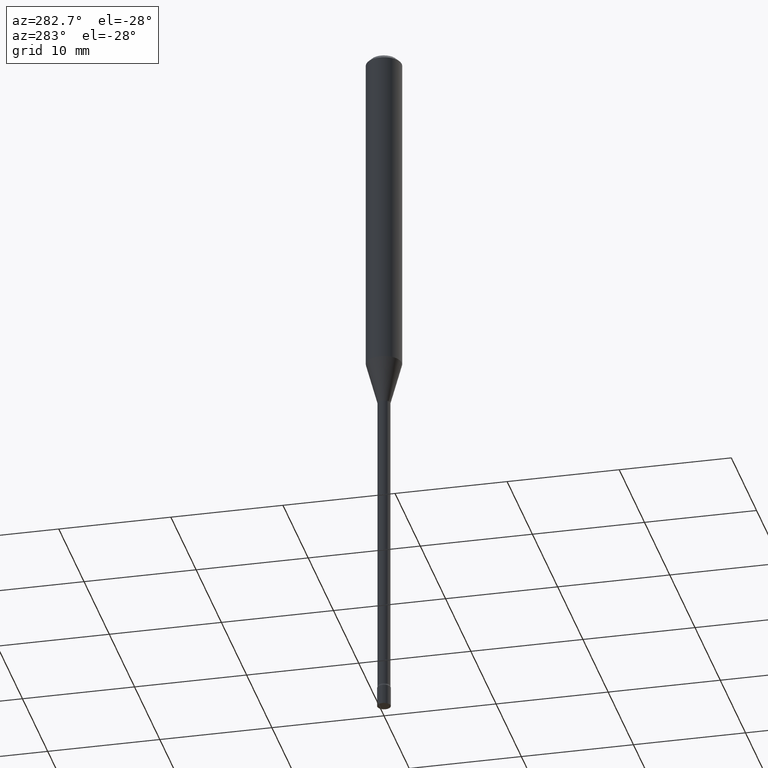
[diagram: clean part render]
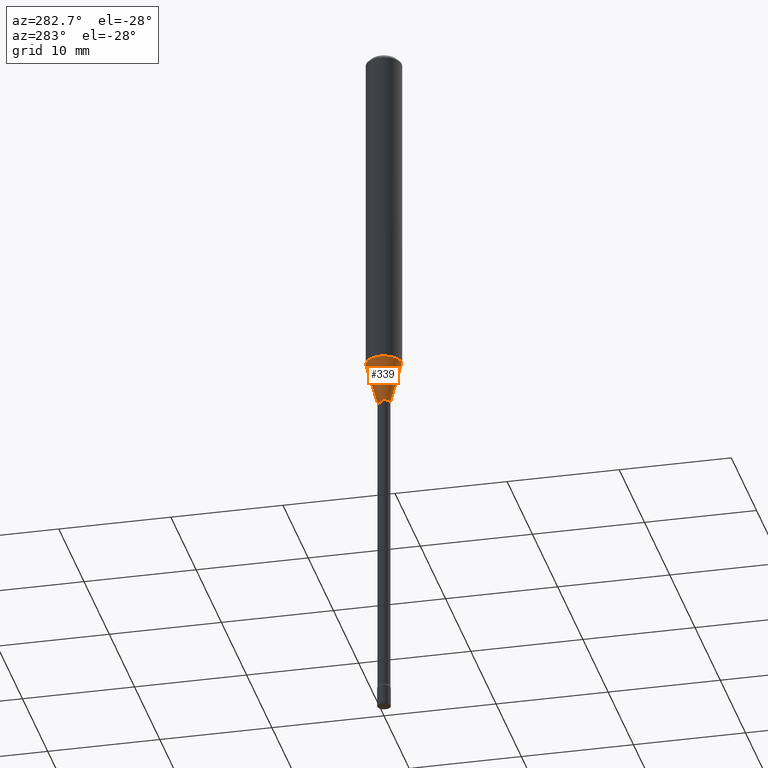
[diagram: same view with one face highlighted and labeled with its STEP entity id]
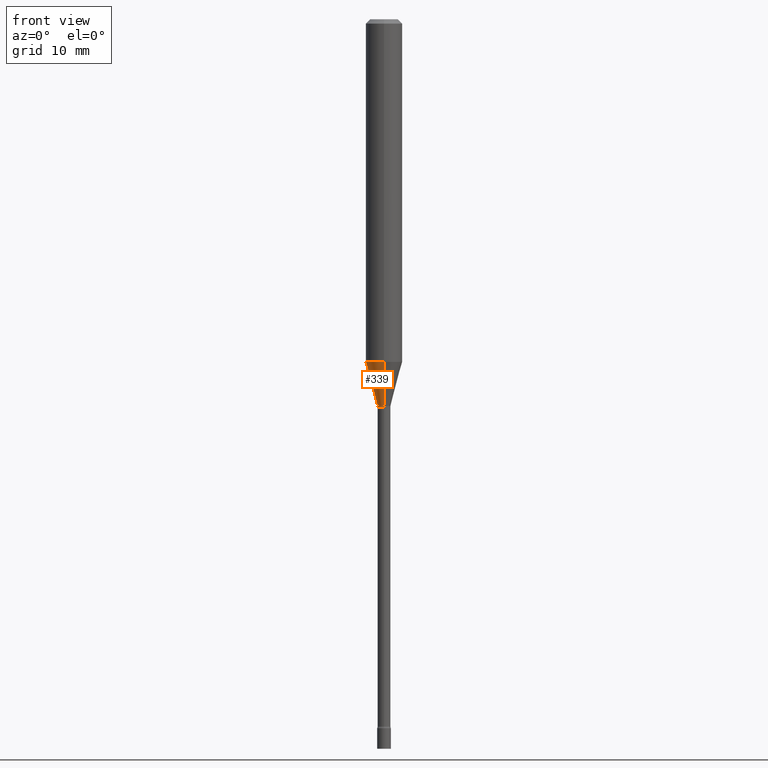
[diagram: same view with one face highlighted and labeled with its STEP entity id]
A machine part, auxiliary view. The second image highlights one B-rep face of the part: STEP entity #339.
A second angle (front view) of the same face is appended — the face is thin or edge-on in the first view.
In plain terms, the highlighted conical surface has half-angle 15 deg.
Its self-contained STEP definition (entity closure, byte-faithful):
#20 = DIRECTION ( 'NONE',  ( 1.839019923739597554E-15, 0.2588190451025245697, 0.9659258262890670910 ) ) ;
#21 = EDGE_CURVE ( 'NONE', #337, #266, #84, .T. ) ;
#28 = AXIS2_PLACEMENT_3D ( 'NONE', #386, #432, #388 ) ;
#64 = CARTESIAN_POINT ( 'NONE',  ( 1.606616180941141096E-16, 0.02261111260565936906, -1.323092501787273223 ) ) ;
#82 = CARTESIAN_POINT ( 'NONE',  ( 2.871546515168501925E-29, -4.099762927148765252E-15, -1.174225147374217793 ) ) ;
#84 = CIRCLE ( 'NONE', #209, 0.06250000000000000000 ) ;
#99 = ORIENTED_EDGE ( 'NONE', *, *, #21, .F. ) ;
#111 = ORIENTED_EDGE ( 'NONE', *, *, #138, .F. ) ;
#134 = CARTESIAN_POINT ( 'NONE',  ( 3.023754139721028336E-16, 0.02261111260565936906, -1.323092501787273223 ) ) ;
#138 = EDGE_CURVE ( 'NONE', #493, #337, #257, .T. ) ;
#173 = EDGE_LOOP ( 'NONE', ( #111, #218, #442, #99 ) ) ;
#189 = CARTESIAN_POINT ( 'NONE',  ( -1.578925554262807327E-16, -0.02261111260566860820, -1.323092501787273223 ) ) ;
#194 = CONICAL_SURFACE ( 'NONE', #382, 0.02261111260566398690, 0.2617993877991499074 ) ;
#196 = DIRECTION ( 'NONE',  ( -2.445482045406543342E-29, 3.491462379524561524E-15, 1.000000000000000000 ) ) ;
#197 = EDGE_CURVE ( 'NONE', #385, #266, #413, .T. ) ;
#198 = CARTESIAN_POINT ( 'NONE',  ( 3.235598957532801493E-29, -4.619527694621298613E-15, -1.323092501787273223 ) ) ;
#202 = DIRECTION ( 'NONE',  ( -6.982962677686265922E-15, -1.000000000000000000, 4.370956789862821150E-15 ) ) ;
#209 = AXIS2_PLACEMENT_3D ( 'NONE', #82, #242, #202 ) ;
#215 = VECTOR ( 'NONE', #20, 39.37007874015748854 ) ;
#218 = ORIENTED_EDGE ( 'NONE', *, *, #401, .T. ) ;
#238 = FACE_OUTER_BOUND ( 'NONE', #173, .T. ) ;
#242 = DIRECTION ( 'NONE',  ( -2.445482045406543342E-29, 3.491462379524561524E-15, 1.000000000000000000 ) ) ;
#257 = LINE ( 'NONE', #64, #215 ) ;
#262 = CIRCLE ( 'NONE', #28, 0.02261111260566398690 ) ;
#266 = VERTEX_POINT ( 'NONE', #293 ) ;
#293 = CARTESIAN_POINT ( 'NONE',  ( -4.364351673553631225E-16, -0.06250000000000412170, -1.174225147374217570 ) ) ;
#297 = DIRECTION ( 'NONE',  ( -1.807323732225327773E-15, -0.2588190451025178529, 0.9659258262890690894 ) ) ;
#322 = CARTESIAN_POINT ( 'NONE',  ( -1.578925554262807327E-16, -0.02261111260566860820, -1.323092501787273223 ) ) ;
#326 = VECTOR ( 'NONE', #297, 39.37007874015748143 ) ;
#337 = VERTEX_POINT ( 'NONE', #509 ) ;
#339 = ADVANCED_FACE ( 'NONE', ( #238 ), #194, .T. ) ;
#352 = DIRECTION ( 'NONE',  ( -6.982962677686265922E-15, -1.000000000000000000, 0.000000000000000000 ) ) ;
#382 = AXIS2_PLACEMENT_3D ( 'NONE', #198, #196, #352 ) ;
#385 = VERTEX_POINT ( 'NONE', #189 ) ;
#386 = CARTESIAN_POINT ( 'NONE',  ( 3.235598957532801493E-29, -4.619527694621298613E-15, -1.323092501787273223 ) ) ;
#388 = DIRECTION ( 'NONE',  ( -6.982962677686265922E-15, -1.000000000000000000, 0.000000000000000000 ) ) ;
#401 = EDGE_CURVE ( 'NONE', #493, #385, #262, .T. ) ;
#413 = LINE ( 'NONE', #322, #326 ) ;
#432 = DIRECTION ( 'NONE',  ( -2.445482045406543342E-29, 3.491462379524561524E-15, 1.000000000000000000 ) ) ;
#442 = ORIENTED_EDGE ( 'NONE', *, *, #197, .T. ) ;
#493 = VERTEX_POINT ( 'NONE', #134 ) ;
#509 = CARTESIAN_POINT ( 'NONE',  ( 4.440892098500910152E-16, 0.06249999999999588524, -1.174225147374218237 ) ) ;